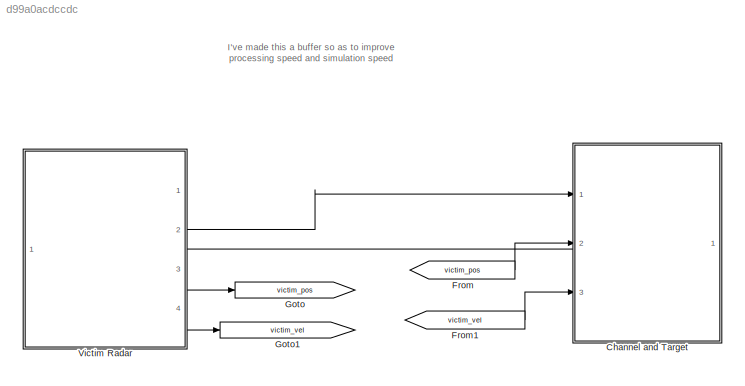
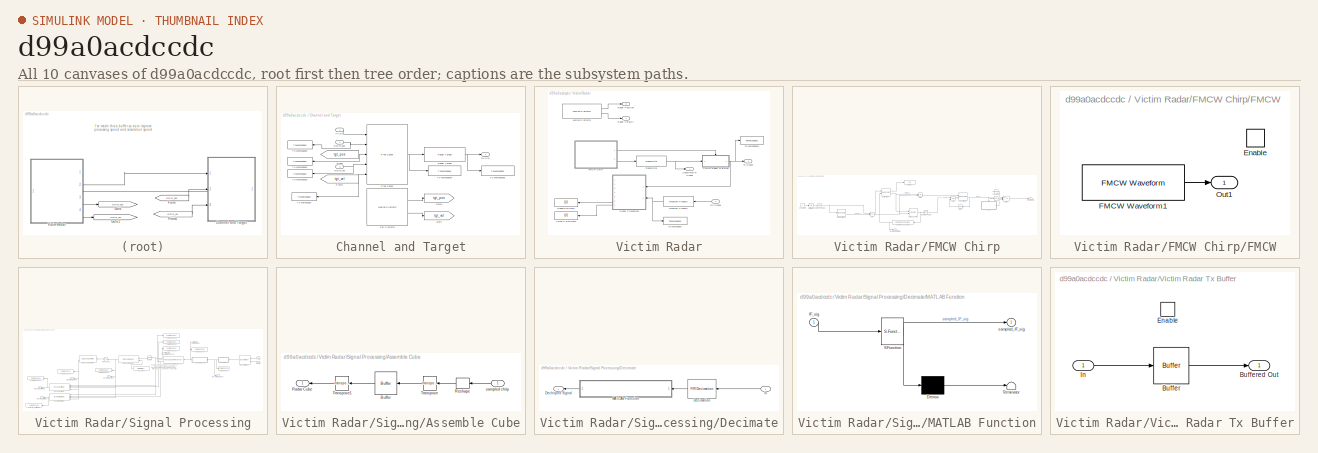
[diagram: thumbnail index - all 10 canvases of the model, root first then tree order]
MODEL slx_d99a0acdccdc
KIND model
CONFIG AbsTol = auto
CONFIG EnableMultiTasking = off
CONFIG FixedStep = auto
CONFIG MaxStep = auto
CONFIG MinStep = auto
CONFIG RelTol = 1e-3
CONFIG SampleTimeConstraint = Unconstrained
CONFIG SolverName = VariableStepAuto
CONFIG StartTime = 0.0
CONFIG StopTime = stop_time
BLOCK [SubSystem] Channel and Target
  PortSchema = {"entries":[{"content":{"sides":[{"content":{"connectorIds":["In1","Out1","In2","In3"]},"type":"ConnectorPlacement.EquallySpacedRectSide","uuid":"8c997438-cd57-4b9a-9eea-b04952771858"},{"content":{"connectorIds":[],"side":"RIGHT"},"type":"ConnectorPlacement.EquallySpacedRectSide","uuid":"a5c22adb-228f-478b-86ad-e927dc02fa6c"},{"content":{"connectorIds":[],"side":"TOP"},"type":"ConnectorPlacement.E...<+253ch>
  Ports = [3, 1]
  RequestExecContextInheritance = off
BLOCK [Reference] Channel and Target/Car Platform  REF=phasedenvlib/Motion Platform
  Ports = [0, 2]
  SourceBlock = phasedenvlib/Motion Platform
  SourceProductBaseCode = AR
  SourceType = phased.internal.SimulinkPlatform
BLOCK [Reference] Channel and Target/Free Space  REF=phasedenvlib/Free Space
  Ports = [5, 1]
  SourceBlock = phasedenvlib/Free Space
  SourceProductBaseCode = AR
  SourceType = phased.FreeSpace
BLOCK [From] Channel and Target/From
  GotoTag = tgt_pos
BLOCK [From] Channel and Target/From1
  GotoTag = tgt_vel
BLOCK [Goto] Channel and Target/Goto
  GotoTag = tgt_vel
BLOCK [Goto] Channel and Target/Goto1
  GotoTag = tgt_pos
BLOCK [Reference] Channel and Target/Radar Target  REF=phasedenvlib/Radar Target
  Ports = [1, 1]
  SourceBlock = phasedenvlib/Radar Target
  SourceProductBaseCode = AR
  SourceType = phased.RadarTarget
BLOCK [Outport] Channel and Target/Rx Sig
BLOCK [ToWorkspace] Channel and Target/To Workspace
  FixptAsFi = on
  MaxDataPoints = 2
  Ports = [1]
  SampleTime = -1
  VariableName = tgt_vel
BLOCK [ToWorkspace] Channel and Target/To Workspace1
  FixptAsFi = on
  MaxDataPoints = 2
  Ports = [1]
  SampleTime = -1
  VariableName = tgt_pos
BLOCK [ToWorkspace] Channel and Target/To Workspace2
  FixptAsFi = on
  MaxDataPoints = 2
  Ports = [1]
  SampleTime = -1
  VariableName = victim_pos
BLOCK [ToWorkspace] Channel and Target/To Workspace3
  FixptAsFi = on
  MaxDataPoints = 2
  Ports = [1]
  SampleTime = -1
  VariableName = victim_vel
BLOCK [ToWorkspace] Channel and Target/To Workspace4
  FixptAsFi = on
  MaxDataPoints = 2
  Ports = [1]
  SampleTime = -1
  VariableName = free_space_sig
BLOCK [ToWorkspace] Channel and Target/To Workspace5
  FixptAsFi = on
  MaxDataPoints = 2
  Ports = [1]
  SampleTime = -1
  VariableName = reflected_sig
BLOCK [Inport] Channel and Target/Tx Sig
BLOCK [Inport] Channel and Target/victim_pos
  Port = 2
BLOCK [Inport] Channel and Target/victim_vel
  Port = 3
BLOCK [From] From
  GotoTag = victim_pos
BLOCK [From] From1
  GotoTag = victim_vel
BLOCK [Goto] Goto
  GotoTag = victim_pos
BLOCK [Goto] Goto1
  GotoTag = victim_vel
BLOCK [SubSystem] Victim Radar
  PortSchema = {"entries":[{"content":{"sides":[{"content":{"connectorIds":[]},"type":"ConnectorPlacement.EquallySpacedRectSide","uuid":"d1da3d36-0806-43d7-8452-bab3645a751c"},{"content":{"connectorIds":["Out1","Out2","In1","Out3","Out4"],"side":"RIGHT"},"type":"ConnectorPlacement.EquallySpacedRectSide","uuid":"352ec7eb-fc0a-43de-8b0c-663d6e923176"},{"content":{"connectorIds":[],"side":"TOP"},"type":"ConnectorPl...<+262ch>
  Ports = [1, 4]
  RequestExecContextInheritance = off
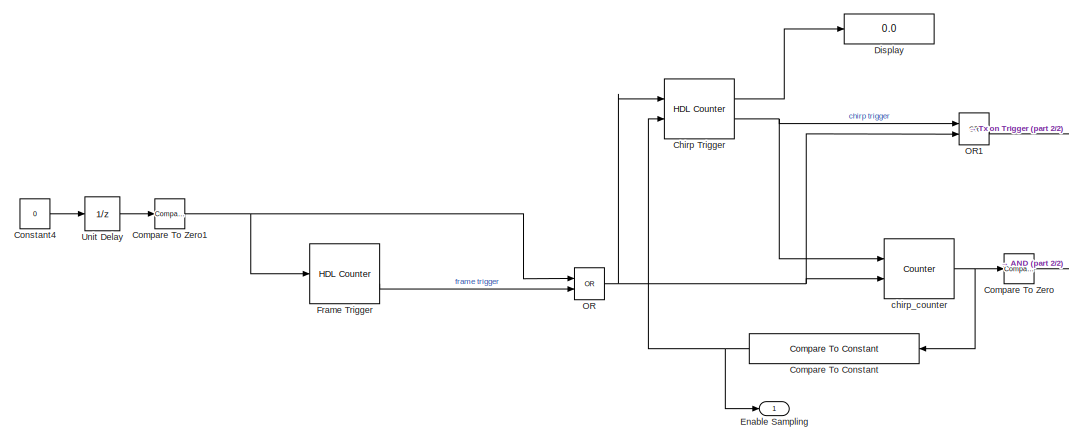
[diagram: Victim Radar/FMCW Chirp - part 1/2, left side, full height]
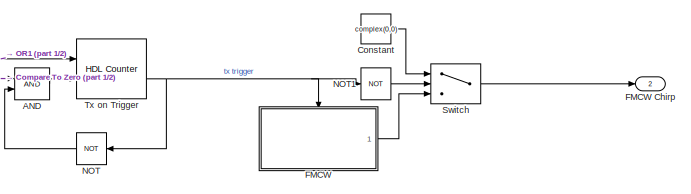
[diagram: Victim Radar/FMCW Chirp - part 2/2, middle right region]
BLOCK [SubSystem] Victim Radar/FMCW Chirp
  Ports = [0, 2]
  RequestExecContextInheritance = off
BLOCK [Logic] Victim Radar/FMCW Chirp/AND
  AllPortsSameDT = off
  IconShape = distinctive
  OutDataTypeStr = boolean
  Ports = [2, 1]
BLOCK [Reference] Victim Radar/FMCW Chirp/Chirp Trigger  REF=hdlsllib/Sources/HDL Counter
  Ports = [2, 2]
  SourceBlock = hdlsllib/Sources/HDL Counter
  SourceProductBaseCode = SL
  SourceType = HDL Counter
BLOCK [Reference] Victim Radar/FMCW Chirp/Compare To Constant  REF=simulink/Logic and Bit
Operations/Compare
To Constant
  Ports = [1, 1]
  SourceBlock = simulink/Logic and Bit\nOperations/Compare\nTo Constant
  SourceProductBaseCode = SL
  SourceType = Compare To Constant
BLOCK [Reference] Victim Radar/FMCW Chirp/Compare To Zero  REF=hdlsllib/Logic and Bit
Operations/Compare
To Zero
  Ports = [1, 1]
  SourceBlock = hdlsllib/Logic and Bit\nOperations/Compare\nTo Zero
  SourceProductBaseCode = SL
  SourceType = Compare To Zero
BLOCK [Reference] Victim Radar/FMCW Chirp/Compare To Zero1  REF=simulink/Logic and Bit
Operations/Compare
To Zero
  Ports = [1, 1]
  SourceBlock = simulink/Logic and Bit\nOperations/Compare\nTo Zero
  SourceProductBaseCode = SL
  SourceType = Compare To Zero
BLOCK [Constant] Victim Radar/FMCW Chirp/Constant
  Value = complex(0,0)
BLOCK [Constant] Victim Radar/FMCW Chirp/Constant4
  Value = 0
BLOCK [Display] Victim Radar/FMCW Chirp/Display
  Decimation = 1
  Ports = [1]
BLOCK [Outport] Victim Radar/FMCW Chirp/Enable Sampling
BLOCK [SubSystem] Victim Radar/FMCW Chirp/FMCW
  Ports = [0, 1, 1]
  RequestExecContextInheritance = off
BLOCK [Outport] Victim Radar/FMCW Chirp/FMCW Chirp
  Port = 2
BLOCK [EnablePort] Victim Radar/FMCW Chirp/FMCW/Enable
  Ports = []
  StatesWhenEnabling = reset
BLOCK [Reference] Victim Radar/FMCW Chirp/FMCW/FMCW Waveform1  REF=phasedwavlib/FMCW Waveform
  Ports = [0, 1]
  SourceBlock = phasedwavlib/FMCW Waveform
  SourceProductBaseCode = AR
  SourceType = phased.FMCWWaveform
BLOCK [Outport] Victim Radar/FMCW Chirp/FMCW/Out1
BLOCK [Reference] Victim Radar/FMCW Chirp/Frame Trigger  REF=hdlsllib/Sources/HDL Counter
  Ports = [1, 2]
  SourceBlock = hdlsllib/Sources/HDL Counter
  SourceProductBaseCode = SL
  SourceType = HDL Counter
BLOCK [Logic] Victim Radar/FMCW Chirp/NOT
  AllPortsSameDT = off
  IconShape = distinctive
  Operator = NOT
  OutDataTypeStr = boolean
  Ports = [1, 1]
BLOCK [Logic] Victim Radar/FMCW Chirp/NOT1
  AllPortsSameDT = off
  IconShape = distinctive
  Operator = NOT
  OutDataTypeStr = boolean
  Ports = [1, 1]
BLOCK [Logic] Victim Radar/FMCW Chirp/OR
  AllPortsSameDT = off
  IconShape = distinctive
  Operator = OR
  OutDataTypeStr = boolean
  Ports = [2, 1]
BLOCK [Logic] Victim Radar/FMCW Chirp/OR1
  AllPortsSameDT = off
  IconShape = distinctive
  Operator = OR
  OutDataTypeStr = boolean
  Ports = [2, 1]
BLOCK [Switch] Victim Radar/FMCW Chirp/Switch
  Criteria = u2 > Threshold
  InputSameDT = off
  SaturateOnIntegerOverflow = off
BLOCK [Reference] Victim Radar/FMCW Chirp/Tx on Trigger  REF=hdlsllib/Sources/HDL Counter
  Ports = [2, 2]
  SourceBlock = hdlsllib/Sources/HDL Counter
  SourceProductBaseCode = SL
  SourceType = HDL Counter
BLOCK [UnitDelay] Victim Radar/FMCW Chirp/Unit Delay
  HasFrameUpgradeWarning = on
  InitialCondition = 1
  SampleTime = -1
BLOCK [Reference] Victim Radar/FMCW Chirp/chirp_counter  REF=dspswit3/Counter
  Ports = [2, 1]
  SourceBlock = dspswit3/Counter
  SourceProductBaseCode = DS
  SourceType = Counter
BLOCK [Reference] Victim Radar/Motion Platform  REF=phasedenvlib/Motion Platform
  Ports = [0, 2]
  SourceBlock = phasedenvlib/Motion Platform
  SourceProductBaseCode = AR
  SourceType = phased.internal.SimulinkPlatform
BLOCK [Outport] Victim Radar/Radar Position
  Port = 3
BLOCK [Outport] Victim Radar/Radar Velocity
  Port = 4
BLOCK [Display] Victim Radar/Range Estimate
  Decimation = 1
  Ports = [1]
BLOCK [Reference] Victim Radar/Receiver Preamp  REF=phasedtxrxlib/Receiver Preamp
  Ports = [1, 1]
  SourceBlock = phasedtxrxlib/Receiver Preamp
  SourceProductBaseCode = AR
  SourceType = phased.internal.SimulinkReceiverPreamp
BLOCK [Inport] Victim Radar/Rx Signal
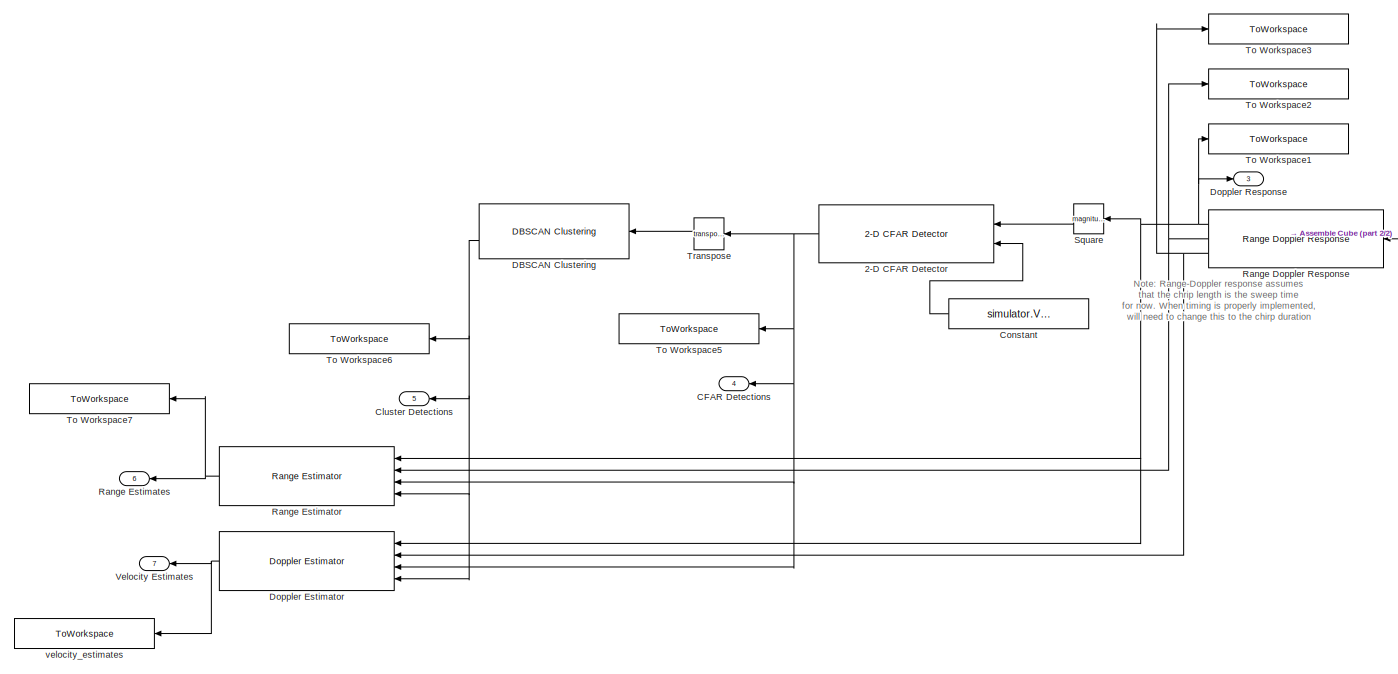
[diagram: Victim Radar/Signal Processing - part 1/2, center side, full height]
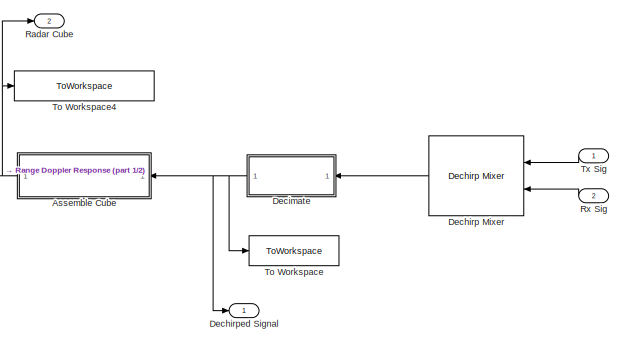
[diagram: Victim Radar/Signal Processing - part 2/2, middle right region]
BLOCK [SubSystem] Victim Radar/Signal Processing
  Ports = [2, 7]
  RequestExecContextInheritance = off
BLOCK [Reference] Victim Radar/Signal Processing/2-D CFAR Detector  REF=phaseddetectlib/2-D CFAR Detector
  Ports = [2, 1]
  SourceBlock = phaseddetectlib/2-D CFAR Detector
  SourceProductBaseCode = AR
  SourceType = phased.CFARDetector2D
BLOCK [SubSystem] Victim Radar/Signal Processing/Assemble Cube
  Ports = [1, 1]
  RequestExecContextInheritance = off
BLOCK [Buffer] Victim Radar/Signal Processing/Assemble Cube/Buffer
  N = simulator.Victim.NumChirps
  OutputFrames = off
BLOCK [Outport] Victim Radar/Signal Processing/Assemble Cube/Radar Cube
BLOCK [Reshape] Victim Radar/Signal Processing/Assemble Cube/Reshape
  Ports = [1, 1]
BLOCK [Math] Victim Radar/Signal Processing/Assemble Cube/Transpose
  Operator = transpose
  Ports = [1, 1]
BLOCK [Math] Victim Radar/Signal Processing/Assemble Cube/Transpose1
  Operator = transpose
  Ports = [1, 1]
BLOCK [Inport] Victim Radar/Signal Processing/Assemble Cube/sampled chirp
BLOCK [Outport] Victim Radar/Signal Processing/CFAR Detections
  Port = 4
BLOCK [Outport] Victim Radar/Signal Processing/Cluster Detections
  Port = 5
BLOCK [Constant] Victim Radar/Signal Processing/Constant
  Value = simulator.Victim.CUT_indicies
  VectorParams1D = off
BLOCK [Reference] Victim Radar/Signal Processing/DBSCAN Clustering  REF=radarlib/DBSCAN Clustering
  Ports = [1, 2]
  SourceBlock = radarlib/DBSCAN Clustering
  SourceProductBaseCode = RA
  SourceType = radar.internal.SimulinkClusterDBSCAN
BLOCK [Reference] Victim Radar/Signal Processing/Dechirp Mixer  REF=phaseddetectlib/Dechirp Mixer
  Ports = [2, 1]
  SourceBlock = phaseddetectlib/Dechirp Mixer
  SourceProductBaseCode = AR
  SourceType = Dechirp
BLOCK [Outport] Victim Radar/Signal Processing/Dechirped Signal
BLOCK [SubSystem] Victim Radar/Signal Processing/Decimate
  Ports = [1, 1]
  RequestExecContextInheritance = off
BLOCK [Outport] Victim Radar/Signal Processing/Decimate/Dechirped Signal
BLOCK [Reference] Victim Radar/Signal Processing/Decimate/Decimation  REF=dspmlti4/FIR
Decimation
  Ports = [1, 1]
  SourceBlock = dspmlti4/FIR\nDecimation
  SourceProductBaseCode = DS
  SourceType = FIR Decimation
  UserDataPersistent = on
BLOCK [Inport] Victim Radar/Signal Processing/Decimate/In
BLOCK [SubSystem] Victim Radar/Signal Processing/Decimate/MATLAB Function
  ErrorFcn = Stateflow.Translate.translate
  PermitHierarchicalResolution = ExplicitOnly
  Ports = [1, 1]
  RequestExecContextInheritance = off
  SFBlockType = MATLAB Function
  TreatAsAtomicUnit = on
BLOCK [Demux] Victim Radar/Signal Processing/Decimate/MATLAB Function/ Demux 
  Outputs = 1
  Ports = [1, 1]
BLOCK [S-Function] Victim Radar/Signal Processing/Decimate/MATLAB Function/ SFunction 
  EnableBusSupport = on
  FunctionName = sf_sfun
  Parameters = num_samples_in_sampling_period,num_samples_prior_to_sample_period
  PortCounts = [1 2]
  Ports = [1, 2]
  SFcnIsStateOwnerBlock = off
  SFunctionDeploymentMode = off
  Tag = Stateflow S-Function 2
BLOCK [Terminator] Victim Radar/Signal Processing/Decimate/MATLAB Function/ Terminator 
BLOCK [Inport] Victim Radar/Signal Processing/Decimate/MATLAB Function/IF_sig
BLOCK [Outport] Victim Radar/Signal Processing/Decimate/MATLAB Function/sampled_IF_sig
BLOCK [Reference] Victim Radar/Signal Processing/Doppler Estimator  REF=phaseddetectlib/Doppler Estimator
  Ports = [4, 1]
  SourceBlock = phaseddetectlib/Doppler Estimator
  SourceProductBaseCode = AR
  SourceType = phased.DopplerEstimator
BLOCK [Outport] Victim Radar/Signal Processing/Doppler Response
  Port = 3
BLOCK [Outport] Victim Radar/Signal Processing/Radar Cube
  Port = 2
BLOCK [Reference] Victim Radar/Signal Processing/Range Doppler Response  REF=phaseddetectlib/Range Doppler Response
  Ports = [1, 3]
  SourceBlock = phaseddetectlib/Range Doppler Response
  SourceProductBaseCode = AR
  SourceType = phased.RangeDopplerResponse
BLOCK [Outport] Victim Radar/Signal Processing/Range Estimates
  Port = 6
BLOCK [Reference] Victim Radar/Signal Processing/Range Estimator  REF=phaseddetectlib/Range Estimator
  Ports = [4, 1]
  SourceBlock = phaseddetectlib/Range Estimator
  SourceProductBaseCode = AR
  SourceType = phased.RangeEstimator
BLOCK [Inport] Victim Radar/Signal Processing/Rx Sig
  Port = 2
BLOCK [Math] Victim Radar/Signal Processing/Square
  Operator = magnitude^2
  Ports = [1, 1]
BLOCK [ToWorkspace] Victim Radar/Signal Processing/To Workspace
  FixptAsFi = on
  MaxDataPoints = 2
  Ports = [1]
  SampleTime = -1
  VariableName = sampled_IF_sig
BLOCK [ToWorkspace] Victim Radar/Signal Processing/To Workspace1
  FixptAsFi = on
  MaxDataPoints = 1
  Ports = [1]
  SampleTime = -1
  VariableName = range_doppler_response
BLOCK [ToWorkspace] Victim Radar/Signal Processing/To Workspace2
  FixptAsFi = on
  MaxDataPoints = 1
  Ports = [1]
  SampleTime = -1
  VariableName = range_bins
BLOCK [ToWorkspace] Victim Radar/Signal Processing/To Workspace3
  FixptAsFi = on
  MaxDataPoints = 1
  Ports = [1]
  SampleTime = -1
  VariableName = velocity_bins
BLOCK [ToWorkspace] Victim Radar/Signal Processing/To Workspace4
  FixptAsFi = on
  MaxDataPoints = 1
  Ports = [1]
  SampleTime = -1
  VariableName = radar_cube
BLOCK [ToWorkspace] Victim Radar/Signal Processing/To Workspace5
  FixptAsFi = on
  MaxDataPoints = 1
  Ports = [1]
  SampleTime = -1
  VariableName = CFAR_detections
BLOCK [ToWorkspace] Victim Radar/Signal Processing/To Workspace6
  FixptAsFi = on
  MaxDataPoints = 1
  Ports = [1]
  SampleTime = -1
  VariableName = cluster_detections
BLOCK [ToWorkspace] Victim Radar/Signal Processing/To Workspace7
  FixptAsFi = on
  MaxDataPoints = 1
  Ports = [1]
  SampleTime = -1
  VariableName = range_estimates
BLOCK [Math] Victim Radar/Signal Processing/Transpose
  Operator = transpose
  Ports = [1, 1]
BLOCK [Inport] Victim Radar/Signal Processing/Tx Sig
BLOCK [Outport] Victim Radar/Signal Processing/Velocity Estimates
  Port = 7
BLOCK [ToWorkspace] Victim Radar/Signal Processing/velocity_estimates
  FixptAsFi = on
  MaxDataPoints = 1
  Ports = [1]
  SampleTime = -1
  VariableName = velocity_estimates
BLOCK [ToWorkspace] Victim Radar/To Workspace
  FixptAsFi = on
  MaxDataPoints = 2
  Ports = [1]
  SampleTime = -1
  VariableName = Rx_sig
BLOCK [ToWorkspace] Victim Radar/To Workspace1
  FixptAsFi = on
  MaxDataPoints = 2
  Ports = [1]
  SampleTime = -1
  VariableName = Tx_sig
BLOCK [Reference] Victim Radar/Transmitter  REF=phasedtxrxlib/Transmitter
  Ports = [1, 1]
  SourceBlock = phasedtxrxlib/Transmitter
  SourceProductBaseCode = AR
  SourceType = phased.Transmitter
BLOCK [Outport] Victim Radar/Tx Signal
  Port = 2
BLOCK [Outport] Victim Radar/Unbuffered Tx Signal
BLOCK [Display] Victim Radar/Velocity Estimate
  Decimation = 1
  Ports = [1]
BLOCK [SubSystem] Victim Radar/Victim Radar Tx Buffer
  Ports = [1, 1, 1]
  RequestExecContextInheritance = off
  TreatAsAtomicUnit = on
BLOCK [Buffer] Victim Radar/Victim Radar Tx Buffer/Buffer
  N = int32(simulator.Victim.FMCW_sampling_rate_Hz * (simulator.Victim.sweep_time + simulator.Victim.IdleTime_us * 1e-6))
  OutputFrames = off
BLOCK [Outport] Victim Radar/Victim Radar Tx Buffer/Buffered Out
BLOCK [EnablePort] Victim Radar/Victim Radar Tx Buffer/Enable
  Ports = []
BLOCK [Inport] Victim Radar/Victim Radar Tx Buffer/In
ANNOTATION (root): I've made this a buffer so as to improve processing speed and simulation speed
ANNOTATION Victim Radar/Signal Processing: Note: Range-Doppler response assumes that the chrip length is the sweep time for now. When timing is properly implemented, will need to change this to the chirp duration
LINE Channel and Target/Car Platform:1 -> Channel and Target/Goto1:1
LINE Channel and Target/Car Platform:2 -> Channel and Target/Goto:1
NET Channel and Target/Free Space:1 -> Channel and Target/Radar Target:1, Channel and Target/To Workspace4:1
NET Channel and Target/From1:1 -> Channel and Target/Free Space:5, Channel and Target/To Workspace:1
NET Channel and Target/From:1 -> Channel and Target/Free Space:3, Channel and Target/To Workspace1:1
NET Channel and Target/Radar Target:1 -> Channel and Target/Rx Sig:1, Channel and Target/To Workspace5:1
LINE Channel and Target/Tx Sig:1 -> Channel and Target/Free Space:1
NET Channel and Target/victim_pos:1 -> Channel and Target/Free Space:2, Channel and Target/To Workspace2:1
NET Channel and Target/victim_vel:1 -> Channel and Target/Free Space:4, Channel and Target/To Workspace3:1
LINE Channel and Target:1 -> Victim Radar:1
LINE From1:1 -> Channel and Target:3
LINE From:1 -> Channel and Target:2
LINE Victim Radar/FMCW Chirp/AND:1 -> Victim Radar/FMCW Chirp/Tx on Trigger:2
LINE Victim Radar/FMCW Chirp/Chirp Trigger:1 -> Victim Radar/FMCW Chirp/Display:1
NET Victim Radar/FMCW Chirp/Chirp Trigger:2 -> Victim Radar/FMCW Chirp/OR1:1, Victim Radar/FMCW Chirp/chirp_counter:1
NET Victim Radar/FMCW Chirp/Compare To Constant:1 -> Victim Radar/FMCW Chirp/Chirp Trigger:2, Victim Radar/FMCW Chirp/Enable Sampling:1
NET Victim Radar/FMCW Chirp/Compare To Zero1:1 -> Victim Radar/FMCW Chirp/Frame Trigger:1, Victim Radar/FMCW Chirp/OR:1
LINE Victim Radar/FMCW Chirp/Compare To Zero:1 -> Victim Radar/FMCW Chirp/AND:1
LINE Victim Radar/FMCW Chirp/Constant4:1 -> Victim Radar/FMCW Chirp/Unit Delay:1
LINE Victim Radar/FMCW Chirp/Constant:1 -> Victim Radar/FMCW Chirp/Switch:1
LINE Victim Radar/FMCW Chirp/FMCW/FMCW Waveform1:1 -> Victim Radar/FMCW Chirp/FMCW/Out1:1
LINE Victim Radar/FMCW Chirp/FMCW:1 -> Victim Radar/FMCW Chirp/Switch:3
LINE Victim Radar/FMCW Chirp/Frame Trigger:2 -> Victim Radar/FMCW Chirp/OR:2
LINE Victim Radar/FMCW Chirp/NOT1:1 -> Victim Radar/FMCW Chirp/Switch:2
LINE Victim Radar/FMCW Chirp/NOT:1 -> Victim Radar/FMCW Chirp/AND:2
LINE Victim Radar/FMCW Chirp/OR1:1 -> Victim Radar/FMCW Chirp/Tx on Trigger:1
NET Victim Radar/FMCW Chirp/OR:1 -> Victim Radar/FMCW Chirp/Chirp Trigger:1, Victim Radar/FMCW Chirp/OR1:2, Victim Radar/FMCW Chirp/chirp_counter:2
LINE Victim Radar/FMCW Chirp/Switch:1 -> Victim Radar/FMCW Chirp/FMCW Chirp:1
NET Victim Radar/FMCW Chirp/Tx on Trigger:2 -> Victim Radar/FMCW Chirp/FMCW:enable, Victim Radar/FMCW Chirp/NOT1:1, Victim Radar/FMCW Chirp/NOT:1
LINE Victim Radar/FMCW Chirp/Unit Delay:1 -> Victim Radar/FMCW Chirp/Compare To Zero1:1
NET Victim Radar/FMCW Chirp/chirp_counter:1 -> Victim Radar/FMCW Chirp/Compare To Constant:1, Victim Radar/FMCW Chirp/Compare To Zero:1
LINE Victim Radar/FMCW Chirp:1 -> Victim Radar/Victim Radar Tx Buffer:enable
LINE Victim Radar/FMCW Chirp:2 -> Victim Radar/Transmitter:1
LINE Victim Radar/Motion Platform:1 -> Victim Radar/Radar Position:1
LINE Victim Radar/Motion Platform:2 -> Victim Radar/Radar Velocity:1
NET Victim Radar/Receiver Preamp:1 -> Victim Radar/Signal Processing:2, Victim Radar/To Workspace:1
LINE Victim Radar/Rx Signal:1 -> Victim Radar/Receiver Preamp:1
NET Victim Radar/Signal Processing/2-D CFAR Detector:1 -> Victim Radar/Signal Processing/CFAR Detections:1, Victim Radar/Signal Processing/Doppler Estimator:3, Victim Radar/Signal Processing/Range Estimator:3, Victim Radar/Signal Processing/To Workspace5:1, Victim Radar/Signal Processing/Transpose:1
LINE Victim Radar/Signal Processing/Assemble Cube/Buffer:1 -> Victim Radar/Signal Processing/Assemble Cube/Transpose1:1
LINE Victim Radar/Signal Processing/Assemble Cube/Reshape:1 -> Victim Radar/Signal Processing/Assemble Cube/Transpose:1
LINE Victim Radar/Signal Processing/Assemble Cube/Transpose1:1 -> Victim Radar/Signal Processing/Assemble Cube/Radar Cube:1
LINE Victim Radar/Signal Processing/Assemble Cube/Transpose:1 -> Victim Radar/Signal Processing/Assemble Cube/Buffer:1
LINE Victim Radar/Signal Processing/Assemble Cube/sampled chirp:1 -> Victim Radar/Signal Processing/Assemble Cube/Reshape:1
NET Victim Radar/Signal Processing/Assemble Cube:1 -> Victim Radar/Signal Processing/Radar Cube:1, Victim Radar/Signal Processing/Range Doppler Response:1, Victim Radar/Signal Processing/To Workspace4:1
LINE Victim Radar/Signal Processing/Constant:1 -> Victim Radar/Signal Processing/2-D CFAR Detector:2
NET Victim Radar/Signal Processing/DBSCAN Clustering:2 -> Victim Radar/Signal Processing/Cluster Detections:1, Victim Radar/Signal Processing/Doppler Estimator:4, Victim Radar/Signal Processing/Range Estimator:4, Victim Radar/Signal Processing/To Workspace6:1
LINE Victim Radar/Signal Processing/Dechirp Mixer:1 -> Victim Radar/Signal Processing/Decimate:1
LINE Victim Radar/Signal Processing/Decimate/Decimation:1 -> Victim Radar/Signal Processing/Decimate/MATLAB Function:1
LINE Victim Radar/Signal Processing/Decimate/In:1 -> Victim Radar/Signal Processing/Decimate/Decimation:1
LINE Victim Radar/Signal Processing/Decimate/MATLAB Function:1 -> Victim Radar/Signal Processing/Decimate/Dechirped Signal:1
NET Victim Radar/Signal Processing/Decimate:1 -> Victim Radar/Signal Processing/Assemble Cube:1, Victim Radar/Signal Processing/Dechirped Signal:1, Victim Radar/Signal Processing/To Workspace:1
NET Victim Radar/Signal Processing/Doppler Estimator:1 -> Victim Radar/Signal Processing/Velocity Estimates:1, Victim Radar/Signal Processing/velocity_estimates:1
NET Victim Radar/Signal Processing/Range Doppler Response:1 -> Victim Radar/Signal Processing/Doppler Estimator:1, Victim Radar/Signal Processing/Doppler Response:1, Victim Radar/Signal Processing/Range Estimator:1, Victim Radar/Signal Processing/Square:1, Victim Radar/Signal Processing/To Workspace1:1
NET Victim Radar/Signal Processing/Range Doppler Response:2 -> Victim Radar/Signal Processing/Range Estimator:2, Victim Radar/Signal Processing/To Workspace2:1
NET Victim Radar/Signal Processing/Range Doppler Response:3 -> Victim Radar/Signal Processing/Doppler Estimator:2, Victim Radar/Signal Processing/To Workspace3:1
NET Victim Radar/Signal Processing/Range Estimator:1 -> Victim Radar/Signal Processing/Range Estimates:1, Victim Radar/Signal Processing/To Workspace7:1
LINE Victim Radar/Signal Processing/Rx Sig:1 -> Victim Radar/Signal Processing/Dechirp Mixer:2
LINE Victim Radar/Signal Processing/Square:1 -> Victim Radar/Signal Processing/2-D CFAR Detector:1
LINE Victim Radar/Signal Processing/Transpose:1 -> Victim Radar/Signal Processing/DBSCAN Clustering:1
LINE Victim Radar/Signal Processing/Tx Sig:1 -> Victim Radar/Signal Processing/Dechirp Mixer:1
LINE Victim Radar/Signal Processing:6 -> Victim Radar/Range Estimate:1
LINE Victim Radar/Signal Processing:7 -> Victim Radar/Velocity Estimate:1
NET Victim Radar/Transmitter:1 -> Victim Radar/Unbuffered Tx Signal:1, Victim Radar/Victim Radar Tx Buffer:1
LINE Victim Radar/Victim Radar Tx Buffer/Buffer:1 -> Victim Radar/Victim Radar Tx Buffer/Buffered Out:1
LINE Victim Radar/Victim Radar Tx Buffer/In:1 -> Victim Radar/Victim Radar Tx Buffer/Buffer:1
NET Victim Radar/Victim Radar Tx Buffer:1 -> Victim Radar/Signal Processing:1, Victim Radar/To Workspace1:1, Victim Radar/Tx Signal:1
LINE Victim Radar:2 -> Channel and Target:1
LINE Victim Radar:3 -> Goto:1
LINE Victim Radar:4 -> Goto1:1
note: NET lines group one-source signal fan-out (src -> all destinations, sorted); 1:1 wires keep LINE
CHART Victim Radar/Signal Processing/Decimate/MATLAB Function states=1 transitions=1
  STATE_LABEL 'eML_blk_kernel()'
  STATE_LABEL 'SCRIPT:\nfunction sampled_IF_sig = select_sampled_IF_sig(IF_sig,num_samples_prior_to_sample_period,num_samples_in_sampling_period)\n\n    sampled_IF_sig = IF_sig(...\n        num_samples_prior_to_sample_period + 1:...\n        num_samples_prior_to_sample_period + num_samples_in_sampling_period);'
CHART  states=0 transitions=0
